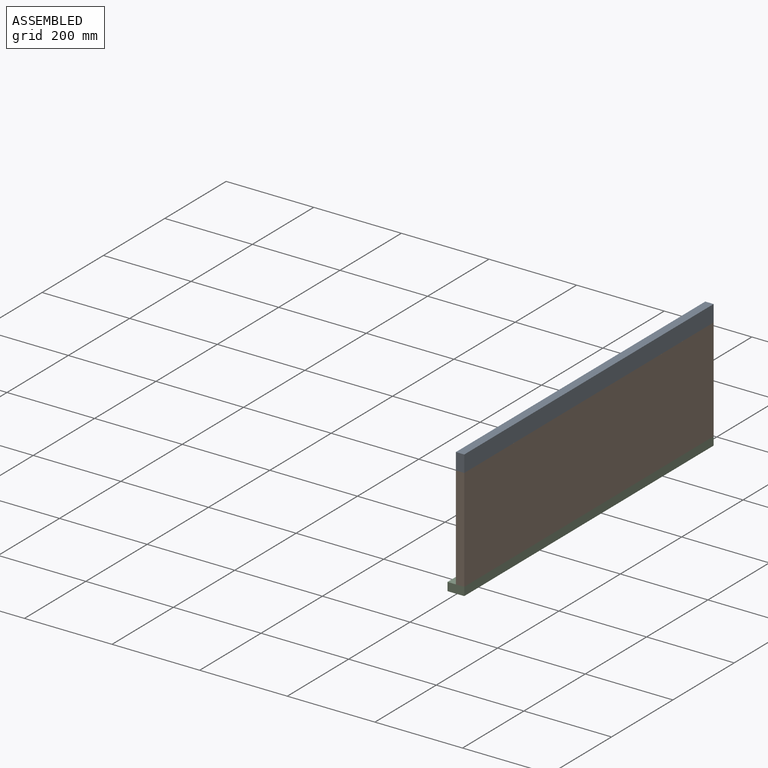
[diagram: assembled view]
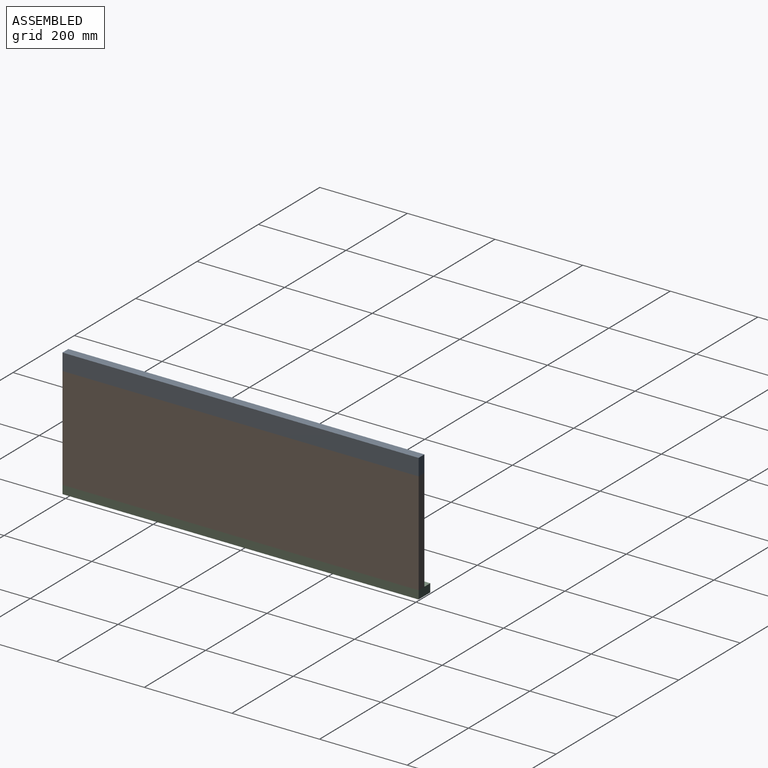
[diagram: assembled view, second angle]
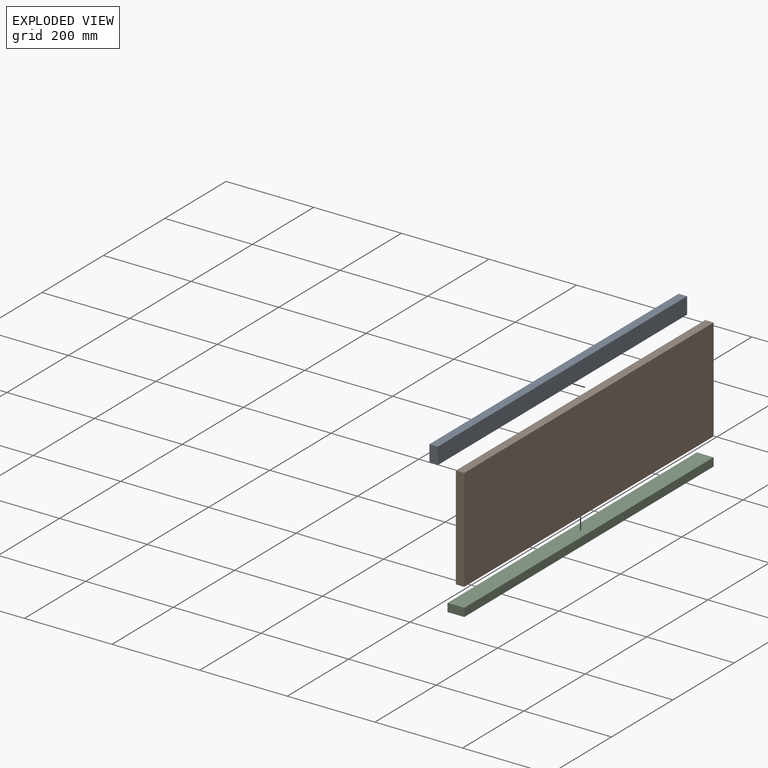
[diagram: exploded view]
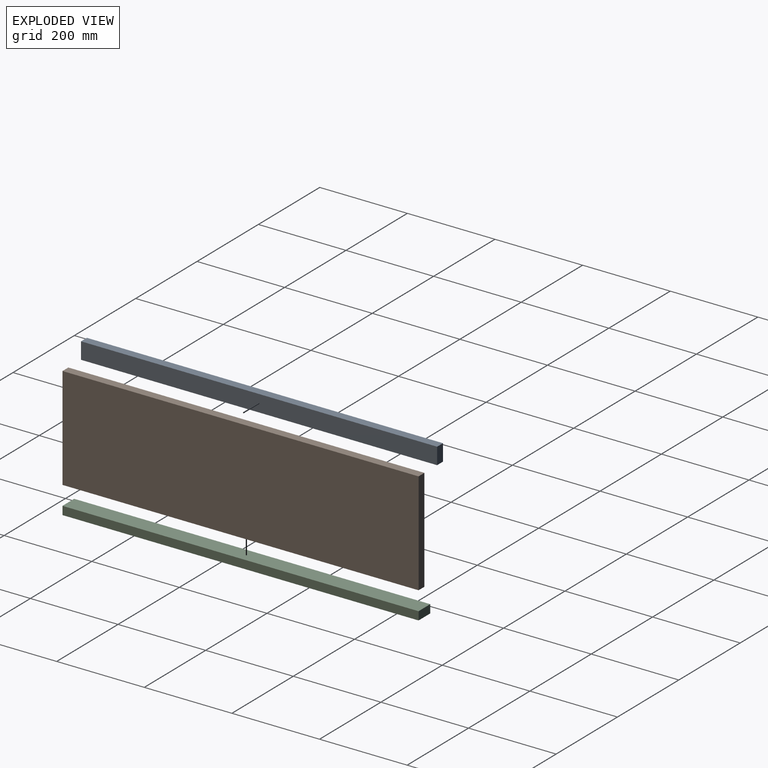
[diagram: exploded view, second angle]
ASSEMBLY  parts=3 mates=6
PART A: 6 faces, bbox 812.8x19.1x38.1 mm
  f0: plane 812.8x19.05mm, normal (0,0,-1), area 15483.8mm2, adj f1,f3,f4,f5
  f1: plane 812.8x38.1mm, normal (0,1,0), area 30967.7mm2, adj f0,f2,f4,f5
  f2: plane 812.8x19.05mm, normal (0,0,1), area 15483.8mm2, adj f1,f3,f4,f5
  f3: plane 812.8x38.1mm, normal (0,-1,0), area 30967.7mm2, adj f0,f2,f4,f5
  f4: plane 38.1x19.05mm, normal (1,0,0), area 725.8mm2, adj f0,f1,f2,f3
  f5: plane 38.1x19.05mm, normal (-1,0,0), area 725.8mm2, adj f0,f1,f2,f3
PART B: 6 faces, bbox 812.8x235x19.1 mm
  f0: plane 812.8x234.95mm, normal (0,0,-1), area 190967.4mm2, adj f1,f3,f4,f5
  f1: plane 812.8x19.05mm, normal (0,1,0), area 15483.8mm2, adj f0,f2,f4,f5
  f2: plane 812.8x234.95mm, normal (0,0,1), area 190967.4mm2, adj f1,f3,f4,f5
  f3: plane 812.8x19.05mm, normal (0,-1,0), area 15483.8mm2, adj f0,f2,f4,f5
  f4: plane 234.95x19.05mm, normal (1,0,0), area 4475.8mm2, adj f0,f1,f2,f3
  f5: plane 234.95x19.05mm, normal (-1,0,0), area 4475.8mm2, adj f0,f1,f2,f3
PART C: same geometry as A
PLACE A rot(axis=(-0.71,0.71,0),180deg) t=(876.79,466.42,114.24)mm
PLACE B rot(axis=(-0.58,0.58,-0.58),120deg) t=(876.79,466.42,-22.29)mm
PLACE C rot(axis=(-0.58,0.58,-0.58),120deg) t=(867.27,466.42,-149.29)mm
MATE planar C.f3 <-> B.f1  axis (0,0,1) through (886.32,-346.38,-139.76)mm
MATE planar B.f2 <-> C.f2  axis (1,0,0) through (886.32,60.02,-22.29)mm
MATE planar A.f3 <-> B.f2  axis (1,0,0) through (886.32,60.02,114.24)mm
MATE planar A.f4 <-> B.f4  axis (0,-1,0) through (876.79,-346.38,95.19)mm
MATE planar C.f5 <-> B.f5  axis (0,1,0) through (867.27,466.42,-149.29)mm
MATE planar A.f2 <-> B.f3  axis (0,0,-1) through (876.79,60.02,95.19)mm
